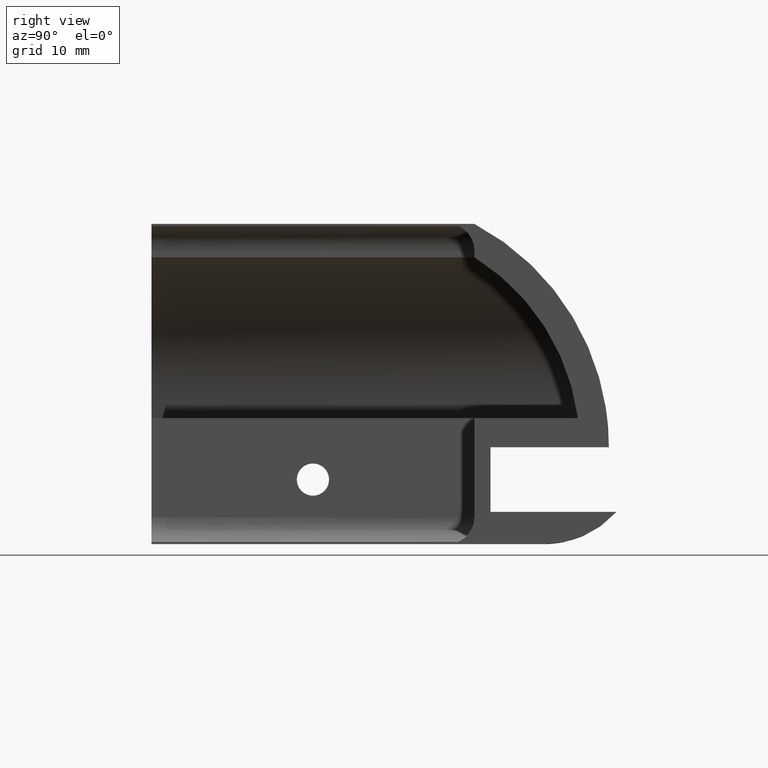
[diagram: clean part render]
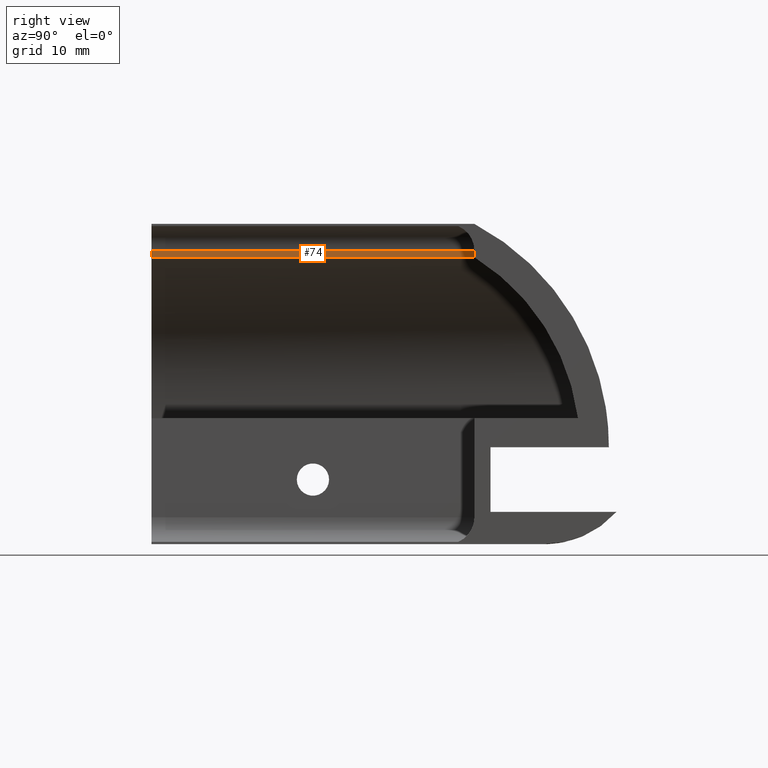
[diagram: same view with one face highlighted and labeled with its STEP entity id]
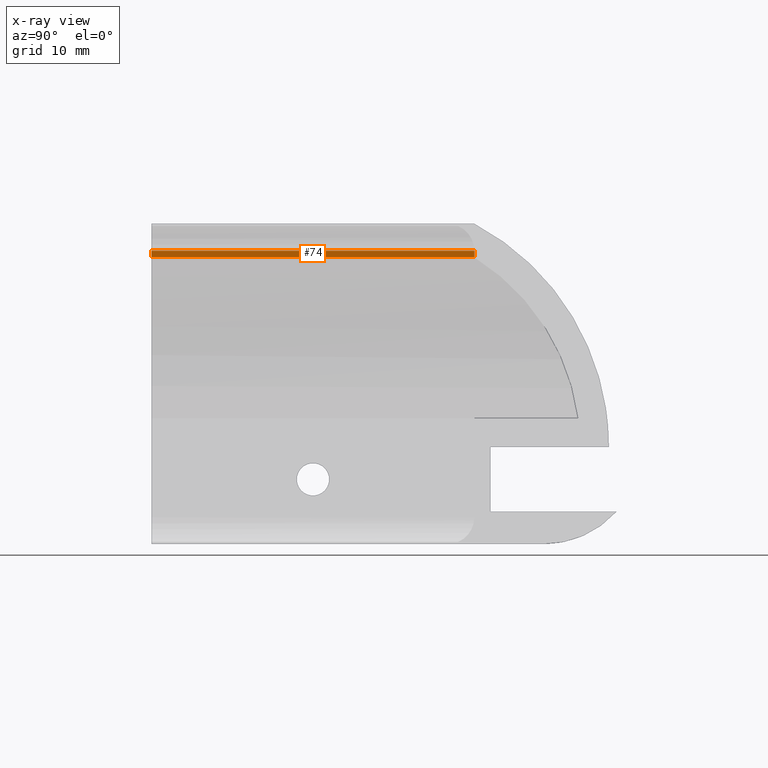
[diagram: x-ray of the same camera — body ghosted, the highlighted face saturated]
A machine part, right view. The second image highlights one B-rep face of the part: STEP entity #74.
The next image is the same camera in x-ray: the body ghosted, the highlighted face saturated — about 0% of this face is hidden behind the body in this view.
In plain terms, the highlighted planar face has unit normal (1, 0, 0).
Its self-contained STEP definition (entity closure, byte-faithful):
#17=CARTESIAN_POINT('',(-1.500000000000000,1.500000000000098,26.653328298085967));
#18=VERTEX_POINT('',#17);
#26=CARTESIAN_POINT('',(-1.500000000000000,-28.499999999999858,26.653328298085970));
#27=VERTEX_POINT('',#26);
#28=CARTESIAN_POINT('',(-1.500000000000000,1.500000000000100,26.653328298085967));
#29=DIRECTION('',(0.0,-1.0,0.0));
#30=VECTOR('',#29,29.999999999999950);
#31=LINE('',#28,#30);
#32=EDGE_CURVE('',#18,#27,#31,.T.);
#44=CARTESIAN_POINT('',(-1.500000000000000,16.000000000000149,26.653328298085967));
#45=DIRECTION('',(1.0,0.0,0.0));
#46=DIRECTION('',(0.0,0.0,1.0));
#47=AXIS2_PLACEMENT_3D('',#44,#45,#46);
#48=PLANE('',#47);
#49=ORIENTED_EDGE('',*,*,#32,.F.);
#50=CARTESIAN_POINT('',(-1.500000000000000,1.500000000000098,27.266559657392918));
#51=VERTEX_POINT('',#50);
#52=CARTESIAN_POINT('',(-1.500000000000000,1.500000000000098,26.653328298085967));
#53=DIRECTION('',(0.0,0.0,1.0));
#54=VECTOR('',#53,0.613231359306951);
#55=LINE('',#52,#54);
#56=EDGE_CURVE('',#18,#51,#55,.T.);
#57=ORIENTED_EDGE('',*,*,#56,.T.);
#58=CARTESIAN_POINT('',(-1.500000000000000,-28.499999999999858,27.266559657392921));
#59=VERTEX_POINT('',#58);
#60=CARTESIAN_POINT('',(-1.500000000000000,1.500000000000100,27.266559657392918));
#61=DIRECTION('',(0.0,-1.0,0.0));
#62=VECTOR('',#61,29.999999999999950);
#63=LINE('',#60,#62);
#64=EDGE_CURVE('',#51,#59,#63,.T.);
#65=ORIENTED_EDGE('',*,*,#64,.T.);
#66=CARTESIAN_POINT('',(-1.500000000000000,-28.499999999999858,26.653328298086002));
#67=DIRECTION('',(0.0,0.0,1.0));
#68=VECTOR('',#67,0.613231359306916);
#69=LINE('',#66,#68);
#70=EDGE_CURVE('',#27,#59,#69,.T.);
#71=ORIENTED_EDGE('',*,*,#70,.F.);
#72=EDGE_LOOP('',(#49,#57,#65,#71));
#73=FACE_OUTER_BOUND('',#72,.T.);
#74=ADVANCED_FACE('',(#73),#48,.T.);